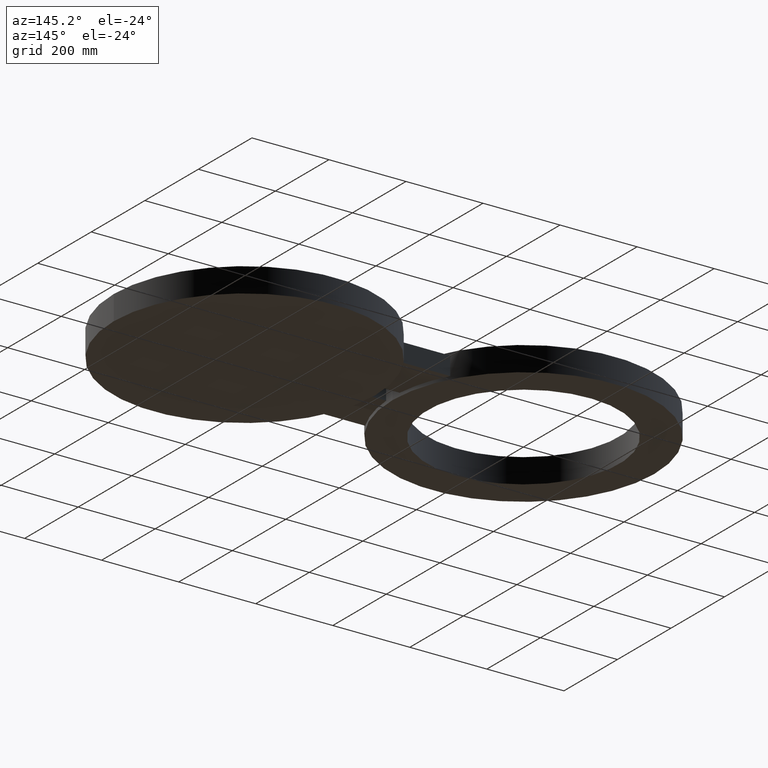
[diagram: clean part render]
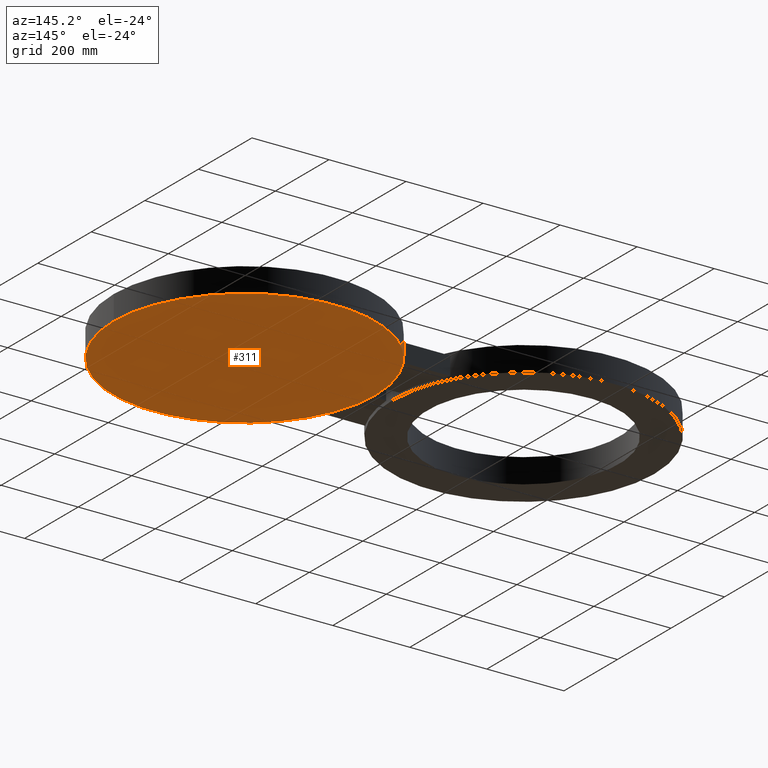
[diagram: same view with one face highlighted and labeled with its STEP entity id]
A machine part, auxiliary view. The second image highlights one B-rep face of the part: STEP entity #311.
In plain terms, the highlighted planar face has unit normal (0, 0, 1).
Its self-contained STEP definition (entity closure, byte-faithful):
#51=AXIS2_PLACEMENT_3D('Circle Axis2P3D',#49,#50,$) ;
#186=AXIS2_PLACEMENT_3D('Plane Axis2P3D',#183,#184,#185) ;
#304=AXIS2_PLACEMENT_3D('Circle Axis2P3D',#302,#303,$) ;
#44=CARTESIAN_POINT('Vertex',(15.1250000001,-8.11484710318E-016,-1.25000000001)) ;
#49=CARTESIAN_POINT('Axis2P3D Location',(28.5000000001,3.49024337758E-015,-1.25000000001)) ;
#53=CARTESIAN_POINT('Vertex',(41.8750000002,1.20936995534E-014,-1.25000000001)) ;
#183=CARTESIAN_POINT('Axis2P3D Location',(0.,0.,-1.25000000001)) ;
#302=CARTESIAN_POINT('Axis2P3D Location',(28.5000000001,3.49024337758E-015,-1.25000000001)) ;
#50=DIRECTION('Axis2P3D Direction',(0.,0.,0.0393700787402)) ;
#184=DIRECTION('Axis2P3D Direction',(0.,0.,0.0393700787402)) ;
#185=DIRECTION('Axis2P3D XDirection',(0.0393700787402,0.,0.)) ;
#303=DIRECTION('Axis2P3D Direction',(0.,0.,0.0393700787402)) ;
#308=ORIENTED_EDGE('',*,*,#306,.F.) ;
#309=ORIENTED_EDGE('',*,*,#55,.F.) ;
#311=ADVANCED_FACE('PartBody',(#310),#187,.F.) ;
#52=CIRCLE('generated circle',#51,13.3750000001) ;
#305=CIRCLE('generated circle',#304,13.3750000001) ;
#55=EDGE_CURVE('',#45,#54,#52,.T.) ;
#306=EDGE_CURVE('',#54,#45,#305,.T.) ;
#307=EDGE_LOOP('',(#308,#309)) ;
#310=FACE_OUTER_BOUND('',#307,.T.) ;
#187=PLANE('',#186) ;
#45=VERTEX_POINT('',#44) ;
#54=VERTEX_POINT('',#53) ;